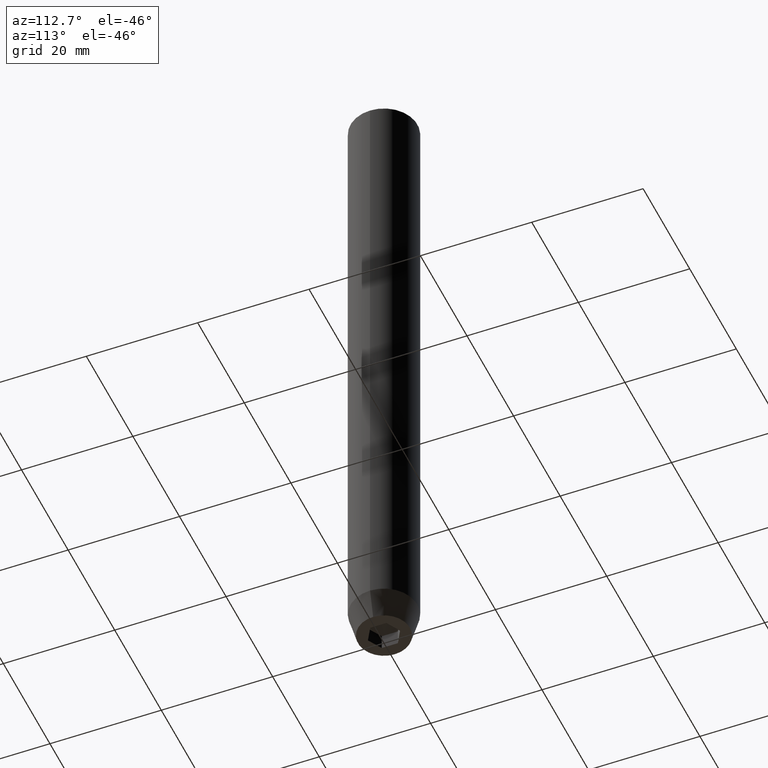
[diagram: clean part render]
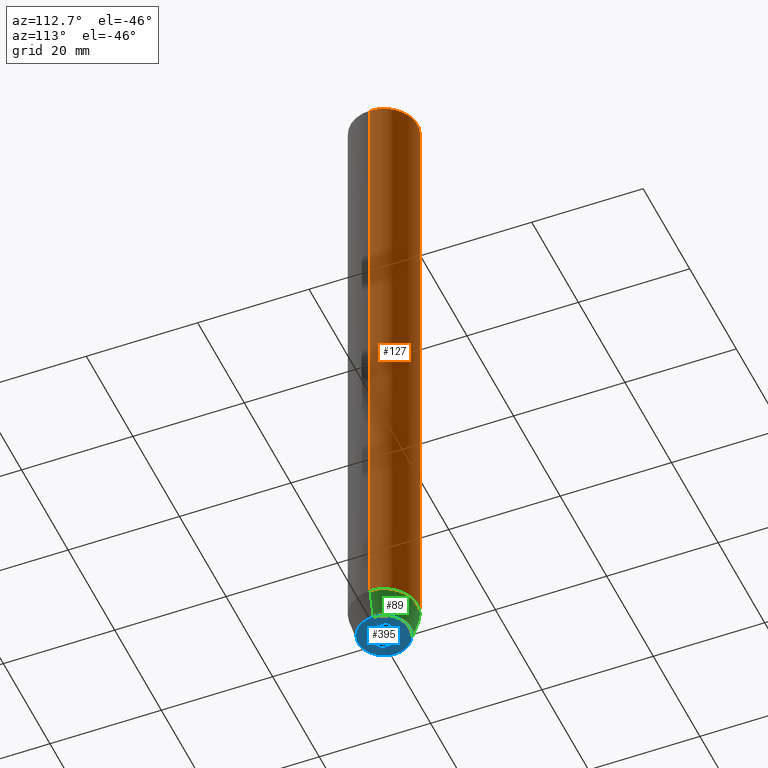
[diagram: same view with three faces highlighted in distinct colors, each labeled with its STEP entity id]
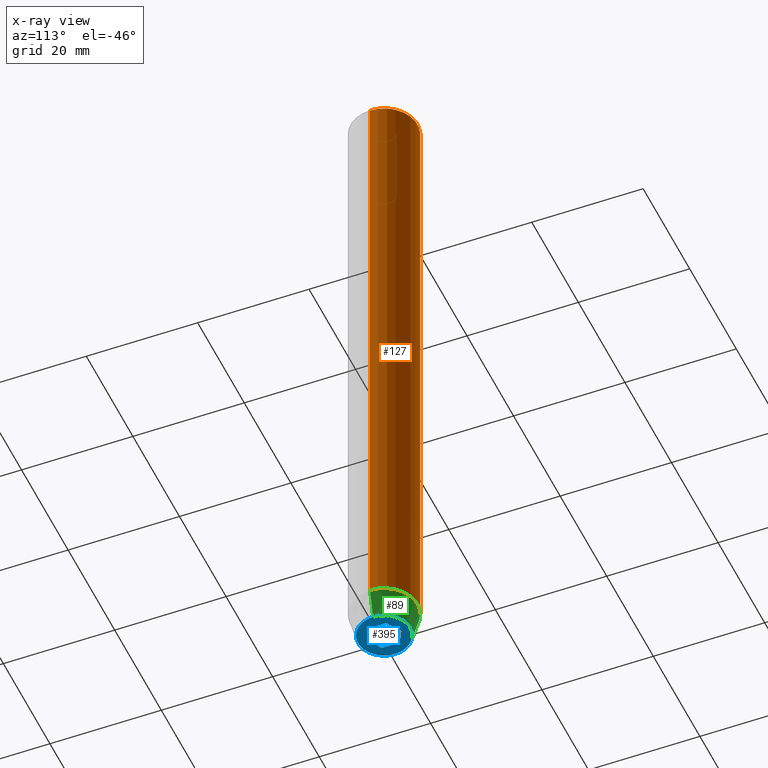
[diagram: x-ray of the same camera — body ghosted, the three highlighted faces saturated]
A machine part, auxiliary view with three faces highlighted in distinct colors.
The next image is the same camera in x-ray (body ghosted, the three faces saturated) — at least one of them is partly hidden behind the body in this view.
Their STEP definitions:

[orange] entity #127 — the highlighted cylindrical surface (edge-blend (fillet) strip) has radius 6 mm, axis along (-0, -0, 1).
#15 = EDGE_CURVE ( 'NONE', #491, #474, #441, .T. ) ;
#39 = EDGE_LOOP ( 'NONE', ( #326, #193, #481, #330 ) ) ;
#61 = VERTEX_POINT ( 'NONE', #368 ) ;
#62 = AXIS2_PLACEMENT_3D ( 'NONE', #434, #118, #157 ) ;
#103 = EDGE_CURVE ( 'NONE', #61, #389, #530, .T. ) ;
#108 = DIRECTION ( 'NONE',  ( -0.000000000000000000, -0.000000000000000000, 1.000000000000000000 ) ) ;
#113 = LINE ( 'NONE', #520, #542 ) ;
#118 = DIRECTION ( 'NONE',  ( -0.000000000000000000, -0.000000000000000000, 1.000000000000000000 ) ) ;
#127 = ADVANCED_FACE ( 'NONE', ( #163 ), #524, .T. ) ;
#137 = CARTESIAN_POINT ( 'NONE',  ( -6.000000000000000000, 7.347880794884119736E-16, -114.9999999999999858 ) ) ;
#139 = CARTESIAN_POINT ( 'NONE',  ( -6.000000000000000000, 7.347880794884119736E-16, 0.000000000000000000 ) ) ;
#157 = DIRECTION ( 'NONE',  ( 1.000000000000000000, 0.000000000000000000, 0.000000000000000000 ) ) ;
#163 = FACE_OUTER_BOUND ( 'NONE', #39, .T. ) ;
#188 = EDGE_CURVE ( 'NONE', #491, #389, #113, .T. ) ;
#193 = ORIENTED_EDGE ( 'NONE', *, *, #467, .T. ) ;
#203 = VECTOR ( 'NONE', #227, 1000.000000000000000 ) ;
#225 = LINE ( 'NONE', #139, #203 ) ;
#227 = DIRECTION ( 'NONE',  ( -0.000000000000000000, -0.000000000000000000, 1.000000000000000000 ) ) ;
#287 = AXIS2_PLACEMENT_3D ( 'NONE', #440, #356, #400 ) ;
#326 = ORIENTED_EDGE ( 'NONE', *, *, #15, .T. ) ;
#330 = ORIENTED_EDGE ( 'NONE', *, *, #188, .F. ) ;
#356 = DIRECTION ( 'NONE',  ( -0.000000000000000000, -0.000000000000000000, 1.000000000000000000 ) ) ;
#358 = CARTESIAN_POINT ( 'NONE',  ( 6.000000000000000000, 0.000000000000000000, -0.4999999999999752975 ) ) ;
#368 = CARTESIAN_POINT ( 'NONE',  ( -6.000000000000000000, 7.347880794884119736E-16, -0.4999999999999752975 ) ) ;
#389 = VERTEX_POINT ( 'NONE', #358 ) ;
#400 = DIRECTION ( 'NONE',  ( 1.000000000000000000, 0.000000000000000000, 0.000000000000000000 ) ) ;
#428 = DIRECTION ( 'NONE',  ( 1.000000000000000000, 0.000000000000000000, 0.000000000000000000 ) ) ;
#434 = CARTESIAN_POINT ( 'NONE',  ( 0.000000000000000000, 0.000000000000000000, -114.9999999999999858 ) ) ;
#440 = CARTESIAN_POINT ( 'NONE',  ( 0.000000000000000000, 0.000000000000000000, 0.000000000000000000 ) ) ;
#441 = CIRCLE ( 'NONE', #62, 6.000000000000000000 ) ;
#443 = AXIS2_PLACEMENT_3D ( 'NONE', #531, #578, #428 ) ;
#449 = CARTESIAN_POINT ( 'NONE',  ( 6.000000000000000000, 0.000000000000000000, -114.9999999999999858 ) ) ;
#467 = EDGE_CURVE ( 'NONE', #474, #61, #225, .T. ) ;
#474 = VERTEX_POINT ( 'NONE', #137 ) ;
#481 = ORIENTED_EDGE ( 'NONE', *, *, #103, .T. ) ;
#491 = VERTEX_POINT ( 'NONE', #449 ) ;
#520 = CARTESIAN_POINT ( 'NONE',  ( 6.000000000000000000, 0.000000000000000000, 0.000000000000000000 ) ) ;
#524 = CYLINDRICAL_SURFACE ( 'NONE', #287, 6.000000000000000000 ) ;
#530 = CIRCLE ( 'NONE', #443, 6.000000000000000000 ) ;
#531 = CARTESIAN_POINT ( 'NONE',  ( 0.000000000000000000, 0.000000000000000000, -0.4999999999999752975 ) ) ;
#542 = VECTOR ( 'NONE', #108, 1000.000000000000000 ) ;
#578 = DIRECTION ( 'NONE',  ( 0.000000000000000000, 0.000000000000000000, -1.000000000000000000 ) ) ;

[blue] entity #395 — the highlighted planar face has unit normal (0, 0, -1).
#8 = ORIENTED_EDGE ( 'NONE', *, *, #184, .F. ) ;
#10 = ORIENTED_EDGE ( 'NONE', *, *, #412, .F. ) ;
#19 = ORIENTED_EDGE ( 'NONE', *, *, #407, .F. ) ;
#49 = VECTOR ( 'NONE', #294, 1000.000000000000000 ) ;
#51 = CARTESIAN_POINT ( 'NONE',  ( 2.500000000000000000, 1.443375672974064328, -120.0000000000000000 ) ) ;
#52 = CARTESIAN_POINT ( 'NONE',  ( -2.500000000000000444, -1.443375672974064328, -120.0000000000000000 ) ) ;
#59 = VERTEX_POINT ( 'NONE', #51 ) ;
#77 = CARTESIAN_POINT ( 'NONE',  ( -2.500000000000000444, 0.000000000000000000, -120.0000000000000000 ) ) ;
#78 = EDGE_CURVE ( 'NONE', #553, #562, #556, .T. ) ;
#79 = AXIS2_PLACEMENT_3D ( 'NONE', #201, #394, #528 ) ;
#104 = CIRCLE ( 'NONE', #79, 4.660254037844381081 ) ;
#105 = ORIENTED_EDGE ( 'NONE', *, *, #573, .F. ) ;
#110 = PLANE ( 'NONE',  #373 ) ;
#117 = FACE_OUTER_BOUND ( 'NONE', #256, .T. ) ;
#132 = CARTESIAN_POINT ( 'NONE',  ( 2.500000000000000000, -1.443375672974064106, -120.0000000000000000 ) ) ;
#138 = VECTOR ( 'NONE', #421, 1000.000000000000114 ) ;
#146 = VECTOR ( 'NONE', #489, 1000.000000000000000 ) ;
#148 = EDGE_CURVE ( 'NONE', #469, #385, #255, .T. ) ;
#155 = DIRECTION ( 'NONE',  ( 0.000000000000000000, -1.000000000000000000, 0.000000000000000000 ) ) ;
#159 = LINE ( 'NONE', #487, #471 ) ;
#171 = LINE ( 'NONE', #541, #138 ) ;
#181 = DIRECTION ( 'NONE',  ( 0.8660254037844385966, -0.5000000000000001110, 0.000000000000000000 ) ) ;
#184 = EDGE_CURVE ( 'NONE', #59, #469, #159, .T. ) ;
#192 = ORIENTED_EDGE ( 'NONE', *, *, #78, .F. ) ;
#200 = VERTEX_POINT ( 'NONE', #206 ) ;
#201 = CARTESIAN_POINT ( 'NONE',  ( 0.000000000000000000, 0.000000000000000000, -120.0000000000000000 ) ) ;
#206 = CARTESIAN_POINT ( 'NONE',  ( -2.500000000000000444, 1.443375672974064772, -120.0000000000000000 ) ) ;
#208 = DIRECTION ( 'NONE',  ( 0.000000000000000000, 0.000000000000000000, -1.000000000000000000 ) ) ;
#222 = VECTOR ( 'NONE', #181, 1000.000000000000000 ) ;
#240 = LINE ( 'NONE', #309, #49 ) ;
#242 = DIRECTION ( 'NONE',  ( -0.8660254037844387076, -0.5000000000000001110, 0.000000000000000000 ) ) ;
#246 = VERTEX_POINT ( 'NONE', #533 ) ;
#250 = CARTESIAN_POINT ( 'NONE',  ( -4.660254037844381081, 6.527522992771884330E-16, -120.0000000000000000 ) ) ;
#255 = LINE ( 'NONE', #575, #585 ) ;
#256 = EDGE_LOOP ( 'NONE', ( #10, #192 ) ) ;
#284 = ORIENTED_EDGE ( 'NONE', *, *, #148, .F. ) ;
#293 = CARTESIAN_POINT ( 'NONE',  ( 0.000000000000000000, -2.886751345948128211, -120.0000000000000000 ) ) ;
#294 = DIRECTION ( 'NONE',  ( 0.8660254037844385966, 0.5000000000000001110, 0.000000000000000000 ) ) ;
#303 = EDGE_CURVE ( 'NONE', #385, #510, #171, .T. ) ;
#307 = ORIENTED_EDGE ( 'NONE', *, *, #303, .F. ) ;
#308 = LINE ( 'NONE', #77, #146 ) ;
#309 = CARTESIAN_POINT ( 'NONE',  ( -1.250000000000000444, 2.165063509461097269, -120.0000000000000000 ) ) ;
#316 = CARTESIAN_POINT ( 'NONE',  ( 1.250000000000000222, 2.165063509461096825, -120.0000000000000000 ) ) ;
#325 = DIRECTION ( 'NONE',  ( 1.000000000000000000, 0.000000000000000000, 0.000000000000000000 ) ) ;
#346 = FACE_BOUND ( 'NONE', #477, .T. ) ;
#373 = AXIS2_PLACEMENT_3D ( 'NONE', #478, #208, #398 ) ;
#385 = VERTEX_POINT ( 'NONE', #293 ) ;
#394 = DIRECTION ( 'NONE',  ( -0.000000000000000000, -0.000000000000000000, 1.000000000000000000 ) ) ;
#395 = ADVANCED_FACE ( 'NONE', ( #346, #117 ), #110, .T. ) ;
#398 = DIRECTION ( 'NONE',  ( -1.000000000000000000, 0.000000000000000000, -0.000000000000000000 ) ) ;
#399 = CARTESIAN_POINT ( 'NONE',  ( 4.660254037844381081, 0.000000000000000000, -120.0000000000000000 ) ) ;
#407 = EDGE_CURVE ( 'NONE', #510, #200, #308, .T. ) ;
#408 = CARTESIAN_POINT ( 'NONE',  ( 0.000000000000000000, 0.000000000000000000, -120.0000000000000000 ) ) ;
#412 = EDGE_CURVE ( 'NONE', #562, #553, #104, .T. ) ;
#421 = DIRECTION ( 'NONE',  ( -0.8660254037844387076, 0.4999999999999998890, 0.000000000000000000 ) ) ;
#425 = EDGE_CURVE ( 'NONE', #246, #59, #586, .T. ) ;
#469 = VERTEX_POINT ( 'NONE', #132 ) ;
#471 = VECTOR ( 'NONE', #155, 1000.000000000000000 ) ;
#477 = EDGE_LOOP ( 'NONE', ( #105, #19, #307, #284, #8, #508 ) ) ;
#478 = CARTESIAN_POINT ( 'NONE',  ( 0.000000000000000000, 4.660254037844381081, -120.0000000000000000 ) ) ;
#487 = CARTESIAN_POINT ( 'NONE',  ( 2.500000000000000000, 0.000000000000000000, -120.0000000000000000 ) ) ;
#489 = DIRECTION ( 'NONE',  ( 0.000000000000000000, 1.000000000000000000, 0.000000000000000000 ) ) ;
#508 = ORIENTED_EDGE ( 'NONE', *, *, #425, .F. ) ;
#510 = VERTEX_POINT ( 'NONE', #52 ) ;
#528 = DIRECTION ( 'NONE',  ( 1.000000000000000000, 0.000000000000000000, 0.000000000000000000 ) ) ;
#529 = AXIS2_PLACEMENT_3D ( 'NONE', #408, #538, #325 ) ;
#533 = CARTESIAN_POINT ( 'NONE',  ( -2.168404344971008868E-16, 2.886751345948129543, -120.0000000000000000 ) ) ;
#538 = DIRECTION ( 'NONE',  ( -0.000000000000000000, -0.000000000000000000, 1.000000000000000000 ) ) ;
#541 = CARTESIAN_POINT ( 'NONE',  ( -1.249999999999999556, -2.165063509461096825, -120.0000000000000000 ) ) ;
#553 = VERTEX_POINT ( 'NONE', #250 ) ;
#556 = CIRCLE ( 'NONE', #529, 4.660254037844381081 ) ;
#562 = VERTEX_POINT ( 'NONE', #399 ) ;
#573 = EDGE_CURVE ( 'NONE', #200, #246, #240, .T. ) ;
#575 = CARTESIAN_POINT ( 'NONE',  ( 1.249999999999999778, -2.165063509461096380, -120.0000000000000000 ) ) ;
#585 = VECTOR ( 'NONE', #242, 999.9999999999998863 ) ;
#586 = LINE ( 'NONE', #316, #222 ) ;

[green] entity #89 — the highlighted conical surface has half-angle 15 deg.
#7 = FACE_OUTER_BOUND ( 'NONE', #466, .T. ) ;
#15 = EDGE_CURVE ( 'NONE', #491, #474, #441, .T. ) ;
#62 = AXIS2_PLACEMENT_3D ( 'NONE', #434, #118, #157 ) ;
#71 = CARTESIAN_POINT ( 'NONE',  ( -6.000000000000000000, 7.347880794884119736E-16, -114.9999999999999858 ) ) ;
#79 = AXIS2_PLACEMENT_3D ( 'NONE', #201, #394, #528 ) ;
#89 = ADVANCED_FACE ( 'NONE', ( #7 ), #452, .T. ) ;
#95 = DIRECTION ( 'NONE',  ( -0.000000000000000000, -0.000000000000000000, 1.000000000000000000 ) ) ;
#104 = CIRCLE ( 'NONE', #79, 4.660254037844381081 ) ;
#118 = DIRECTION ( 'NONE',  ( -0.000000000000000000, -0.000000000000000000, 1.000000000000000000 ) ) ;
#137 = CARTESIAN_POINT ( 'NONE',  ( -6.000000000000000000, 7.347880794884119736E-16, -114.9999999999999858 ) ) ;
#157 = DIRECTION ( 'NONE',  ( 1.000000000000000000, 0.000000000000000000, 0.000000000000000000 ) ) ;
#183 = CARTESIAN_POINT ( 'NONE',  ( 0.000000000000000000, 0.000000000000000000, -114.9999999999999858 ) ) ;
#201 = CARTESIAN_POINT ( 'NONE',  ( 0.000000000000000000, 0.000000000000000000, -120.0000000000000000 ) ) ;
#216 = ORIENTED_EDGE ( 'NONE', *, *, #551, .T. ) ;
#234 = ORIENTED_EDGE ( 'NONE', *, *, #15, .F. ) ;
#250 = CARTESIAN_POINT ( 'NONE',  ( -4.660254037844381081, 6.527522992771884330E-16, -120.0000000000000000 ) ) ;
#300 = ORIENTED_EDGE ( 'NONE', *, *, #412, .T. ) ;
#355 = DIRECTION ( 'NONE',  ( -0.2588190451025214611, 3.169619151431774186E-17, 0.9659258262890679791 ) ) ;
#360 = ORIENTED_EDGE ( 'NONE', *, *, #450, .F. ) ;
#384 = DIRECTION ( 'NONE',  ( 1.000000000000000000, 0.000000000000000000, 0.000000000000000000 ) ) ;
#390 = AXIS2_PLACEMENT_3D ( 'NONE', #183, #95, #384 ) ;
#394 = DIRECTION ( 'NONE',  ( -0.000000000000000000, -0.000000000000000000, 1.000000000000000000 ) ) ;
#399 = CARTESIAN_POINT ( 'NONE',  ( 4.660254037844381081, 0.000000000000000000, -120.0000000000000000 ) ) ;
#410 = CARTESIAN_POINT ( 'NONE',  ( 6.000000000000000000, 0.000000000000000000, -114.9999999999999858 ) ) ;
#412 = EDGE_CURVE ( 'NONE', #562, #553, #104, .T. ) ;
#434 = CARTESIAN_POINT ( 'NONE',  ( 0.000000000000000000, 0.000000000000000000, -114.9999999999999858 ) ) ;
#441 = CIRCLE ( 'NONE', #62, 6.000000000000000000 ) ;
#449 = CARTESIAN_POINT ( 'NONE',  ( 6.000000000000000000, 0.000000000000000000, -114.9999999999999858 ) ) ;
#450 = EDGE_CURVE ( 'NONE', #562, #491, #455, .T. ) ;
#452 = CONICAL_SURFACE ( 'NONE', #390, 6.000000000000000000, 0.2617993877991502405 ) ;
#455 = LINE ( 'NONE', #410, #566 ) ;
#466 = EDGE_LOOP ( 'NONE', ( #300, #216, #234, #360 ) ) ;
#474 = VERTEX_POINT ( 'NONE', #137 ) ;
#484 = LINE ( 'NONE', #71, #497 ) ;
#491 = VERTEX_POINT ( 'NONE', #449 ) ;
#497 = VECTOR ( 'NONE', #355, 1000.000000000000114 ) ;
#528 = DIRECTION ( 'NONE',  ( 1.000000000000000000, 0.000000000000000000, 0.000000000000000000 ) ) ;
#551 = EDGE_CURVE ( 'NONE', #553, #474, #484, .T. ) ;
#553 = VERTEX_POINT ( 'NONE', #250 ) ;
#562 = VERTEX_POINT ( 'NONE', #399 ) ;
#566 = VECTOR ( 'NONE', #582, 1000.000000000000114 ) ;
#582 = DIRECTION ( 'NONE',  ( 0.2588190451025214611, 0.000000000000000000, 0.9659258262890679791 ) ) ;